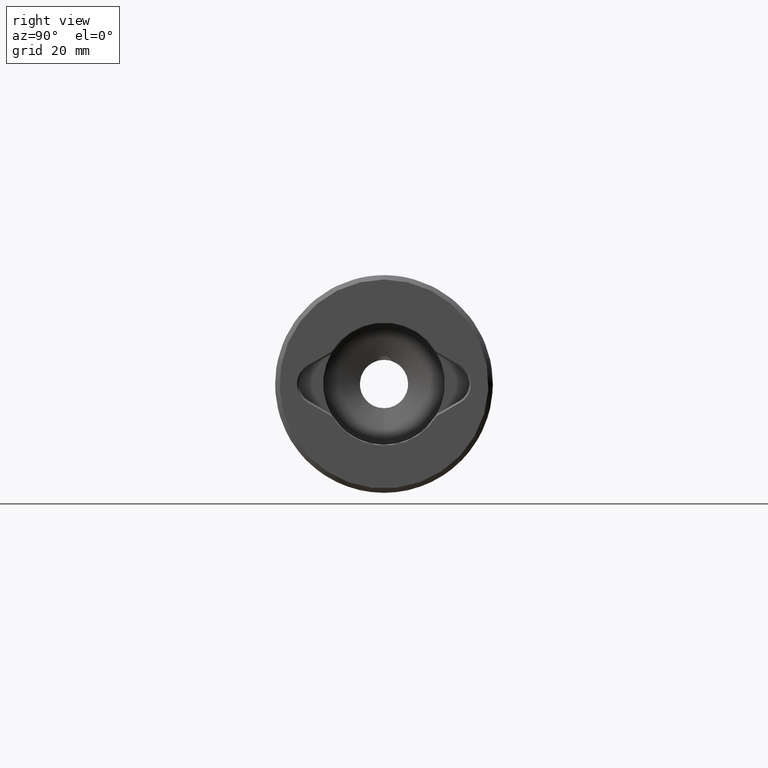
[diagram: clean part render]
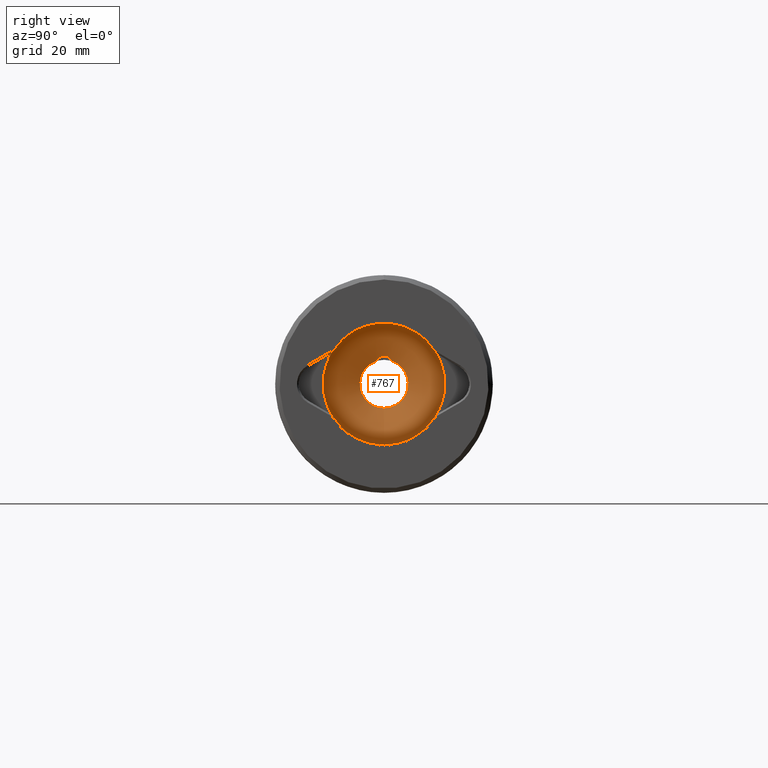
[diagram: same view with one face highlighted and labeled with its STEP entity id]
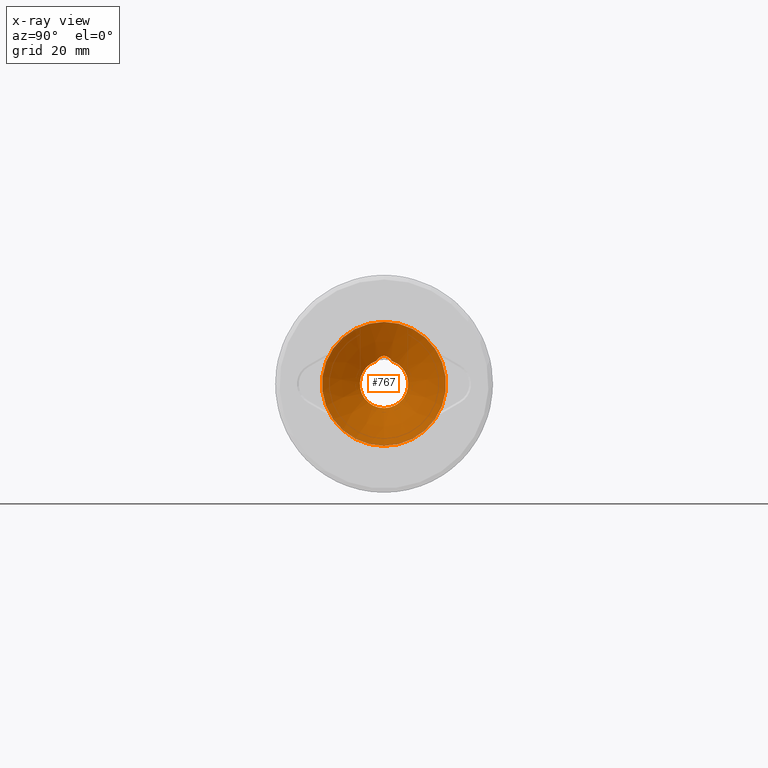
[diagram: x-ray of the same camera — body ghosted, the highlighted face saturated]
A machine part, right view. The second image highlights one B-rep face of the part: STEP entity #767.
The next image is the same camera in x-ray: the body ghosted, the highlighted face saturated — about 3% of this face is hidden behind the body in this view.
In plain terms, the highlighted conical surface has half-angle 70 deg.
Its self-contained STEP definition (entity closure, byte-faithful):
#41 = CARTESIAN_POINT ( 'NONE',  ( 117.5428107160831672, 0.4778639038143633333, 6.382777009711475102 ) ) ;
#50 = ORIENTED_EDGE ( 'NONE', *, *, #114, .T. ) ;
#54 = CARTESIAN_POINT ( 'NONE',  ( 117.5601379893798253, 0.1914611938328220631, 6.445427964796540010 ) ) ;
#62 = CARTESIAN_POINT ( 'NONE',  ( 120.4000000000000909, 0.0000000000000000000, 0.0000000000000000000 ) ) ;
#98 = CARTESIAN_POINT ( 'NONE',  ( 117.2380449868359023, 0.0000000000000000000, -1.936075099810686291E-16 ) ) ;
#114 = EDGE_CURVE ( 'NONE', #1283, #1283, #1555, .T. ) ;
#169 = CARTESIAN_POINT ( 'NONE',  ( 117.2380449868359023, -1.872272276108186029, 5.238044986835896921 ) ) ;
#183 = CARTESIAN_POINT ( 'NONE',  ( 117.3905387906548725, 1.379526784699978581, 5.822583710807331947 ) ) ;
#184 = VERTEX_POINT ( 'NONE', #681 ) ;
#186 = CARTESIAN_POINT ( 'NONE',  ( 117.5418905122631656, -0.4882978370159795634, 6.379443263402228226 ) ) ;
#193 = CARTESIAN_POINT ( 'NONE',  ( 117.3928202491309634, -1.400298490717556632, 5.832139955427225964 ) ) ;
#198 = FACE_BOUND ( 'NONE', #202, .T. ) ;
#202 = EDGE_LOOP ( 'NONE', ( #1414, #1650 ) ) ;
#280 = AXIS2_PLACEMENT_3D ( 'NONE', #62, #944, #1460 ) ;
#310 = CARTESIAN_POINT ( 'NONE',  ( 117.5495377852251835, -0.3928647838797351133, 6.407111468441534896 ) ) ;
#336 = CONICAL_SURFACE ( 'NONE', #280, 14.25000000000000000, 1.221730476396033493 ) ;
#390 = CARTESIAN_POINT ( 'NONE',  ( 120.4000000000000909, 0.0000000000000000000, 0.0000000000000000000 ) ) ;
#408 = EDGE_LOOP ( 'NONE', ( #50 ) ) ;
#409 = AXIS2_PLACEMENT_3D ( 'NONE', #390, #1284, #1129 ) ;
#435 = CARTESIAN_POINT ( 'NONE',  ( 117.2778706890168507, 1.760852146505168303, 5.394070703173005299 ) ) ;
#466 = EDGE_CURVE ( 'NONE', #184, #689, #975, .T. ) ;
#476 = DIRECTION ( 'NONE',  ( -1.000000000000000000, 0.0000000000000000000, -6.123031769111886291E-17 ) ) ;
#568 = CARTESIAN_POINT ( 'NONE',  ( 117.4860584837463051, -0.9332137528725060749, 6.176317915532129277 ) ) ;
#574 = CARTESIAN_POINT ( 'NONE',  ( 117.5501794085294875, 0.3837973199796297918, 6.409432511991949077 ) ) ;
#590 = AXIS2_PLACEMENT_3D ( 'NONE', #98, #476, #1477 ) ;
#681 = CARTESIAN_POINT ( 'NONE',  ( 117.2380449868359023, 1.872272276108184030, 5.238044986835897809 ) ) ;
#689 = VERTEX_POINT ( 'NONE', #169 ) ;
#704 = CARTESIAN_POINT ( 'NONE',  ( 117.5597807254636535, -0.2013719265875330011, 6.444138338891353790 ) ) ;
#767 = ADVANCED_FACE ( 'NONE', ( #198, #1504 ), #336, .F. ) ;
#806 = CARTESIAN_POINT ( 'NONE',  ( 117.3172406712554903, -1.650706981868335754, 5.548311039050953575 ) ) ;
#902 = EDGE_CURVE ( 'NONE', #689, #184, #1562, .T. ) ;
#939 = CARTESIAN_POINT ( 'NONE',  ( 117.2380449868359023, -1.872272276108186029, 5.238044986835896921 ) ) ;
#944 = DIRECTION ( 'NONE',  ( 1.000000000000000000, -0.0000000000000000000, 6.123031769111886291E-17 ) ) ;
#975 = CIRCLE ( 'NONE', #590, 5.562599999999999767 ) ;
#1066 = CARTESIAN_POINT ( 'NONE',  ( 117.5627064842797580, 0.09197862762785483093, 6.454691906189732542 ) ) ;
#1129 = DIRECTION ( 'NONE',  ( 0.0000000000000000000, 0.0000000000000000000, -1.000000000000000000 ) ) ;
#1186 = CARTESIAN_POINT ( 'NONE',  ( 117.4877813448506174, 0.9231396962944351525, 6.182627935437423616 ) ) ;
#1283 = VERTEX_POINT ( 'NONE', #1632 ) ;
#1284 = DIRECTION ( 'NONE',  ( 1.000000000000000000, 0.0000000000000000000, 6.123031769111886291E-17 ) ) ;
#1312 = CARTESIAN_POINT ( 'NONE',  ( 117.5143244579362403, 0.7543789977101723609, 6.279367562307016648 ) ) ;
#1414 = ORIENTED_EDGE ( 'NONE', *, *, #466, .T. ) ;
#1451 = CARTESIAN_POINT ( 'NONE',  ( 117.5131178349803491, -0.7628344301417617768, 6.274972741604200266 ) ) ;
#1457 = CARTESIAN_POINT ( 'NONE',  ( 117.4259078465443196, 1.235902515805458179, 5.954325730683842188 ) ) ;
#1460 = DIRECTION ( 'NONE',  ( 0.0000000000000000000, 0.0000000000000000000, -1.000000000000000000 ) ) ;
#1462 = CARTESIAN_POINT ( 'NONE',  ( 117.2380449868359023, 1.872272276108184030, 5.238044986835897809 ) ) ;
#1477 = DIRECTION ( 'NONE',  ( 0.0000000000000000000, 0.0000000000000000000, -1.000000000000000000 ) ) ;
#1504 = FACE_OUTER_BOUND ( 'NONE', #408, .T. ) ;
#1555 = CIRCLE ( 'NONE', #409, 14.25000000000000000 ) ;
#1562 = B_SPLINE_CURVE_WITH_KNOTS ( 'NONE', 3,
 ( #939, #806, #193, #568, #1451, #186, #310, #704, #1578, #1066, #54, #574, #41, #1312, #1186, #1457, #183, #1585, #435, #1462 ),
 .UNSPECIFIED., .F., .F.,
 ( 4, 2, 2, 2, 2, 2, 2, 2, 2, 4 ),
 ( 0.0001579265216183264051, 0.001315055450264454497, 0.001893619914587519031, 0.002182902146749050865, 0.002472184378910582698, 0.002761466611072114531, 0.003050748843233646798, 0.003629313307556709164, 0.004207877771879772397, 0.004786442236202835196 ),
 .UNSPECIFIED. ) ;
#1578 = CARTESIAN_POINT ( 'NONE',  ( 117.5624865406204407, -0.1044365051371611702, 6.453898058509778934 ) ) ;
#1585 = CARTESIAN_POINT ( 'NONE',  ( 117.3167087770418249, 1.641222222426158783, 5.543142745279762806 ) ) ;
#1632 = CARTESIAN_POINT ( 'NONE',  ( 120.4000000000000909, 0.0000000000000000000, -14.25000000000000000 ) ) ;
#1650 = ORIENTED_EDGE ( 'NONE', *, *, #902, .T. ) ;